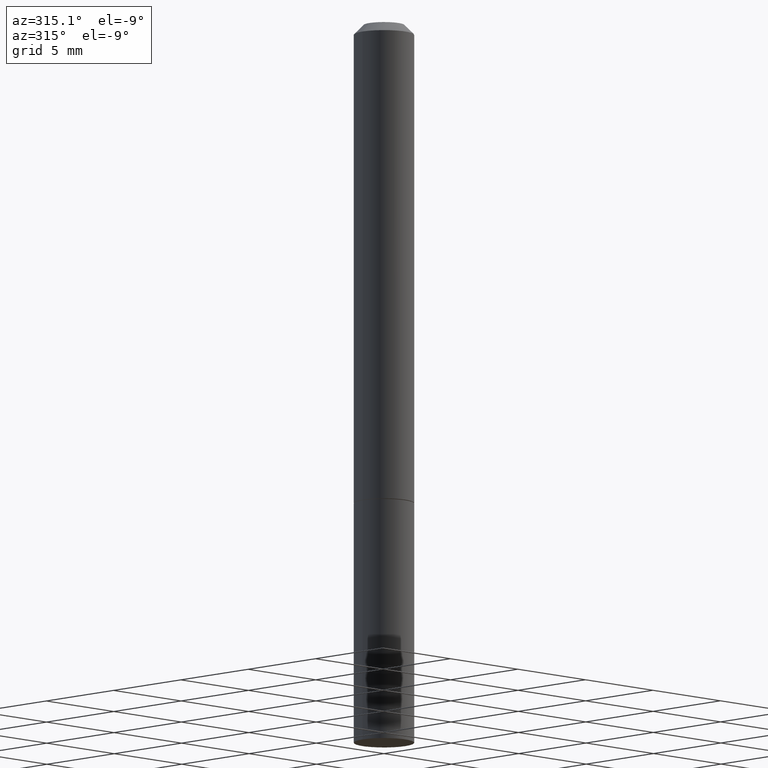
[diagram: clean part render]
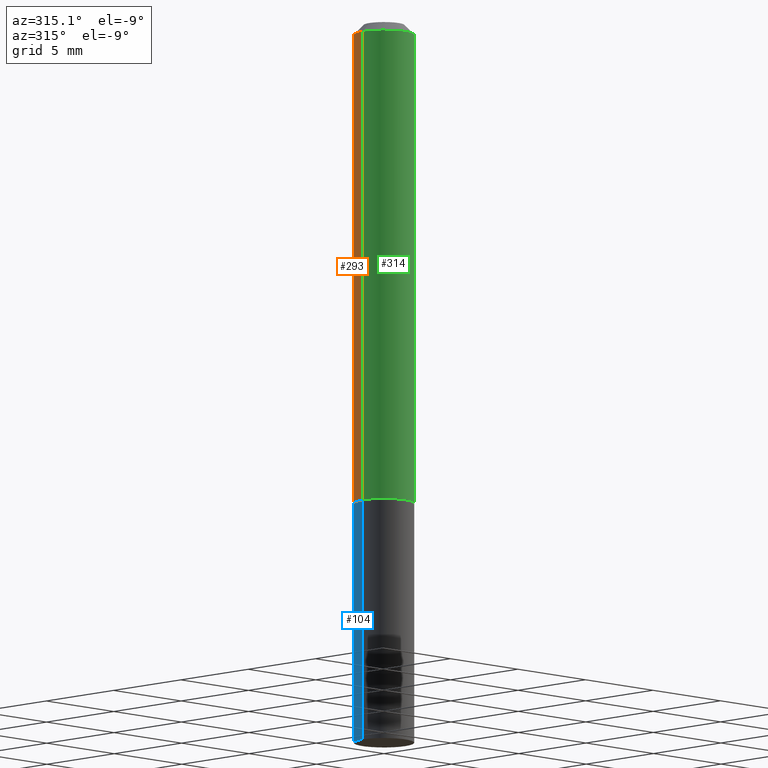
[diagram: same view with three faces highlighted in distinct colors, each labeled with its STEP entity id]
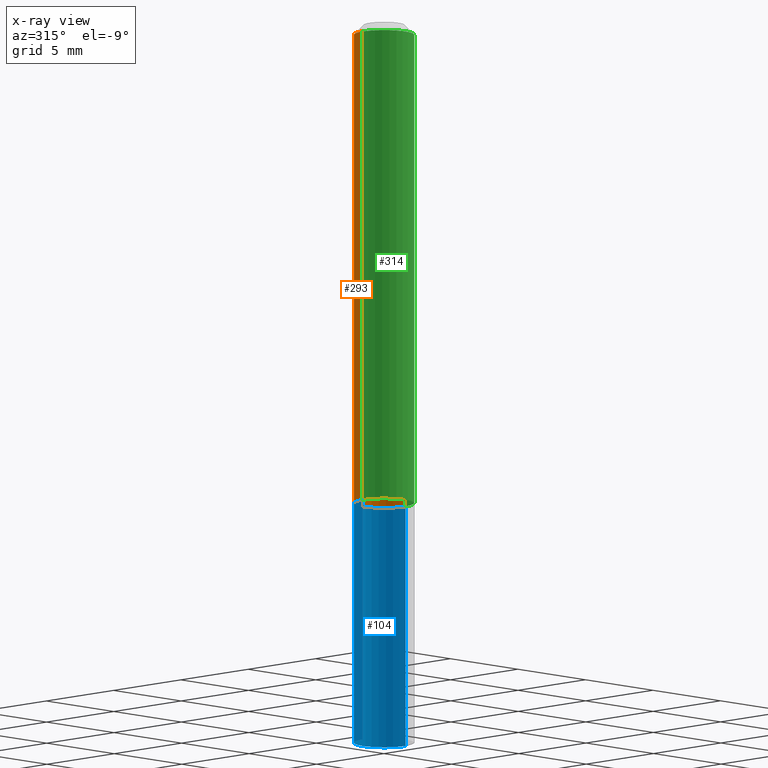
[diagram: x-ray of the same camera — body ghosted, the three highlighted faces saturated]
A machine part, auxiliary view with three faces highlighted in distinct colors.
The next image is the same camera in x-ray (body ghosted, the three faces saturated) — at least one of them is partly hidden behind the body in this view.
Their STEP definitions:

[orange] entity #293 — the highlighted cylindrical surface (edge-blend (fillet) strip) has radius 1.5875 mm, axis along (-0, 0, 1).
#7 = VECTOR ( 'NONE', #194, 39.37007874015748143 ) ;
#22 = CIRCLE ( 'NONE', #379, 0.06249999999999988898 ) ;
#31 = EDGE_CURVE ( 'NONE', #253, #79, #291, .T. ) ;
#40 = CARTESIAN_POINT ( 'NONE',  ( 0.06249999999999995143, -4.364351673553913243E-16, 3.047610484872457418E-30 ) ) ;
#44 = CARTESIAN_POINT ( 'NONE',  ( 0.06250000000000000000, -3.924425024859694639E-15, -0.9990000000000002212 ) ) ;
#50 = ORIENTED_EDGE ( 'NONE', *, *, #31, .T. ) ;
#59 = FACE_OUTER_BOUND ( 'NONE', #275, .T. ) ;
#61 = CARTESIAN_POINT ( 'NONE',  ( 2.443023337378951835E-29, -3.487989857504302970E-15, -0.9990000000000002212 ) ) ;
#79 = VERTEX_POINT ( 'NONE', #164 ) ;
#149 = CARTESIAN_POINT ( 'NONE',  ( 0.000000000000000000, 0.000000000000000000, 0.000000000000000000 ) ) ;
#158 = ORIENTED_EDGE ( 'NONE', *, *, #373, .T. ) ;
#164 = CARTESIAN_POINT ( 'NONE',  ( -0.06249999999999988898, 3.666055405785279275E-16, -0.02000000000000001429 ) ) ;
#176 = DIRECTION ( 'NONE',  ( -2.445468806185136597E-29, 3.491481338843145583E-15, 1.000000000000000000 ) ) ;
#183 = ORIENTED_EDGE ( 'NONE', *, *, #339, .F. ) ;
#188 = LINE ( 'NONE', #40, #7 ) ;
#194 = DIRECTION ( 'NONE',  ( -2.445468806185136877E-29, 3.491481338843145188E-15, 1.000000000000000000 ) ) ;
#202 = EDGE_CURVE ( 'NONE', #206, #338, #188, .T. ) ;
#206 = VERTEX_POINT ( 'NONE', #44 ) ;
#210 = DIRECTION ( 'NONE',  ( -2.445468806185136597E-29, 3.491481338843145583E-15, 1.000000000000000000 ) ) ;
#213 = CIRCLE ( 'NONE', #386, 0.06250000000000000000 ) ;
#229 = CARTESIAN_POINT ( 'NONE',  ( -0.06249999999999995143, 4.440892098500622710E-16, -3.074334431409313661E-30 ) ) ;
#243 = CARTESIAN_POINT ( 'NONE',  ( 0.06249999999999988898, -4.986107516375829362E-16, -0.02000000000000001429 ) ) ;
#253 = VERTEX_POINT ( 'NONE', #361 ) ;
#264 = DIRECTION ( 'NONE',  ( 1.000000000000000000, -6.982962677686270655E-15, 0.000000000000000000 ) ) ;
#266 = CYLINDRICAL_SURFACE ( 'NONE', #333, 0.06249999999999995143 ) ;
#275 = EDGE_LOOP ( 'NONE', ( #158, #50, #183, #357 ) ) ;
#290 = DIRECTION ( 'NONE',  ( -2.445468806185136597E-29, 3.491481338843145583E-15, 1.000000000000000000 ) ) ;
#291 = LINE ( 'NONE', #229, #378 ) ;
#293 = ADVANCED_FACE ( 'NONE', ( #59 ), #266, .T. ) ;
#330 = CARTESIAN_POINT ( 'NONE',  ( 4.890937612370275786E-31, -6.982962677686296539E-17, -0.02000000000000001429 ) ) ;
#333 = AXIS2_PLACEMENT_3D ( 'NONE', #149, #210, #359 ) ;
#338 = VERTEX_POINT ( 'NONE', #243 ) ;
#339 = EDGE_CURVE ( 'NONE', #338, #79, #22, .T. ) ;
#346 = DIRECTION ( 'NONE',  ( -2.445468806185136877E-29, 3.491481338843145188E-15, 1.000000000000000000 ) ) ;
#357 = ORIENTED_EDGE ( 'NONE', *, *, #202, .F. ) ;
#359 = DIRECTION ( 'NONE',  ( 1.000000000000000000, -6.982962677686266711E-15, 4.876176775795935793E-29 ) ) ;
#361 = CARTESIAN_POINT ( 'NONE',  ( -0.06250000000000001388, -1.334820532290518743E-15, -0.9990000000000002212 ) ) ;
#373 = EDGE_CURVE ( 'NONE', #206, #253, #213, .T. ) ;
#378 = VECTOR ( 'NONE', #346, 39.37007874015748143 ) ;
#379 = AXIS2_PLACEMENT_3D ( 'NONE', #330, #176, #385 ) ;
#385 = DIRECTION ( 'NONE',  ( 1.000000000000000000, -6.982962677686266711E-15, 0.000000000000000000 ) ) ;
#386 = AXIS2_PLACEMENT_3D ( 'NONE', #61, #290, #264 ) ;

[blue] entity #104 — the highlighted cylindrical surface (edge-blend (fillet) strip) has radius 1.5875 mm, axis along (-0, 0, 1).
#9 = EDGE_CURVE ( 'NONE', #36, #324, #16, .T. ) ;
#13 = CARTESIAN_POINT ( 'NONE',  ( 0.06250000000000000000, -4.364351673553916694E-16, 3.047610484872459871E-30 ) ) ;
#16 = LINE ( 'NONE', #13, #184 ) ;
#17 = CARTESIAN_POINT ( 'NONE',  ( -0.06250000000000000000, -3.920262463703869855E-15, -1.000000000000000222 ) ) ;
#25 = CARTESIAN_POINT ( 'NONE',  ( 3.668203209277704895E-29, -5.237222008264718177E-15, -1.500000000000000222 ) ) ;
#36 = VERTEX_POINT ( 'NONE', #112 ) ;
#46 = LINE ( 'NONE', #111, #212 ) ;
#49 = DIRECTION ( 'NONE',  ( 1.000000000000000000, -6.982962677686266711E-15, 4.876176775795935793E-29 ) ) ;
#53 = DIRECTION ( 'NONE',  ( -2.445468806185136597E-29, 3.491481338843145583E-15, 1.000000000000000000 ) ) ;
#72 = EDGE_CURVE ( 'NONE', #324, #226, #347, .T. ) ;
#75 = AXIS2_PLACEMENT_3D ( 'NONE', #350, #80, #49 ) ;
#80 = DIRECTION ( 'NONE',  ( -2.445468806185136597E-29, 3.491481338843145583E-15, 1.000000000000000000 ) ) ;
#104 = ADVANCED_FACE ( 'NONE', ( #281 ), #316, .T. ) ;
#106 = EDGE_LOOP ( 'NONE', ( #363, #341, #354, #156 ) ) ;
#109 = CARTESIAN_POINT ( 'NONE',  ( 2.445468806185136877E-29, -3.491481338843145977E-15, -1.000000000000000222 ) ) ;
#111 = CARTESIAN_POINT ( 'NONE',  ( -0.06250000000000000000, 4.440892098500626162E-16, -3.074334431409316114E-30 ) ) ;
#112 = CARTESIAN_POINT ( 'NONE',  ( 0.06249999999999989592, -5.666003133125438899E-15, -1.500000000000000222 ) ) ;
#116 = CARTESIAN_POINT ( 'NONE',  ( 0.06250000000000000000, -3.927916506198537646E-15, -1.000000000000000222 ) ) ;
#131 = EDGE_CURVE ( 'NONE', #315, #226, #46, .T. ) ;
#156 = ORIENTED_EDGE ( 'NONE', *, *, #9, .F. ) ;
#178 = AXIS2_PLACEMENT_3D ( 'NONE', #25, #325, #298 ) ;
#184 = VECTOR ( 'NONE', #284, 39.37007874015748143 ) ;
#212 = VECTOR ( 'NONE', #256, 39.37007874015748143 ) ;
#226 = VERTEX_POINT ( 'NONE', #17 ) ;
#231 = DIRECTION ( 'NONE',  ( 1.000000000000000000, -6.982962677686262766E-15, 0.000000000000000000 ) ) ;
#248 = CIRCLE ( 'NONE', #178, 0.06250000000000000000 ) ;
#250 = EDGE_CURVE ( 'NONE', #36, #315, #248, .T. ) ;
#256 = DIRECTION ( 'NONE',  ( -2.445468806185136877E-29, 3.491481338843145188E-15, 1.000000000000000000 ) ) ;
#279 = AXIS2_PLACEMENT_3D ( 'NONE', #109, #53, #231 ) ;
#281 = FACE_OUTER_BOUND ( 'NONE', #106, .T. ) ;
#284 = DIRECTION ( 'NONE',  ( -2.445468806185136877E-29, 3.491481338843145188E-15, 1.000000000000000000 ) ) ;
#298 = DIRECTION ( 'NONE',  ( 1.000000000000000000, -6.982962677686262766E-15, 0.000000000000000000 ) ) ;
#315 = VERTEX_POINT ( 'NONE', #360 ) ;
#316 = CYLINDRICAL_SURFACE ( 'NONE', #75, 0.06250000000000000000 ) ;
#324 = VERTEX_POINT ( 'NONE', #116 ) ;
#325 = DIRECTION ( 'NONE',  ( -2.445468806185136597E-29, 3.491481338843145583E-15, 1.000000000000000000 ) ) ;
#341 = ORIENTED_EDGE ( 'NONE', *, *, #131, .T. ) ;
#347 = CIRCLE ( 'NONE', #279, 0.06250000000000000000 ) ;
#350 = CARTESIAN_POINT ( 'NONE',  ( 0.000000000000000000, 0.000000000000000000, 0.000000000000000000 ) ) ;
#354 = ORIENTED_EDGE ( 'NONE', *, *, #72, .F. ) ;
#360 = CARTESIAN_POINT ( 'NONE',  ( -0.06249999999999989592, -4.800786840909328085E-15, -1.500000000000000222 ) ) ;
#363 = ORIENTED_EDGE ( 'NONE', *, *, #250, .T. ) ;

[green] entity #314 — the highlighted cylindrical surface (edge-blend (fillet) strip) has radius 1.5875 mm, axis along (-0, 0, 1).
#7 = VECTOR ( 'NONE', #194, 39.37007874015748143 ) ;
#10 = EDGE_LOOP ( 'NONE', ( #134, #287, #277, #39 ) ) ;
#31 = EDGE_CURVE ( 'NONE', #253, #79, #291, .T. ) ;
#39 = ORIENTED_EDGE ( 'NONE', *, *, #328, .F. ) ;
#40 = CARTESIAN_POINT ( 'NONE',  ( 0.06249999999999995143, -4.364351673553913243E-16, 3.047610484872457418E-30 ) ) ;
#44 = CARTESIAN_POINT ( 'NONE',  ( 0.06250000000000000000, -3.924425024859694639E-15, -0.9990000000000002212 ) ) ;
#57 = DIRECTION ( 'NONE',  ( -2.445468806185136597E-29, 3.491481338843145583E-15, 1.000000000000000000 ) ) ;
#60 = DIRECTION ( 'NONE',  ( 1.000000000000000000, -6.982962677686266711E-15, 0.000000000000000000 ) ) ;
#79 = VERTEX_POINT ( 'NONE', #164 ) ;
#87 = DIRECTION ( 'NONE',  ( -2.445468806185136597E-29, 3.491481338843145583E-15, 1.000000000000000000 ) ) ;
#119 = DIRECTION ( 'NONE',  ( 1.000000000000000000, -6.982962677686266711E-15, 4.876176775795935793E-29 ) ) ;
#134 = ORIENTED_EDGE ( 'NONE', *, *, #31, .F. ) ;
#147 = CYLINDRICAL_SURFACE ( 'NONE', #217, 0.06249999999999995143 ) ;
#164 = CARTESIAN_POINT ( 'NONE',  ( -0.06249999999999988898, 3.666055405785279275E-16, -0.02000000000000001429 ) ) ;
#173 = DIRECTION ( 'NONE',  ( -2.445468806185136597E-29, 3.491481338843145583E-15, 1.000000000000000000 ) ) ;
#188 = LINE ( 'NONE', #40, #7 ) ;
#194 = DIRECTION ( 'NONE',  ( -2.445468806185136877E-29, 3.491481338843145188E-15, 1.000000000000000000 ) ) ;
#202 = EDGE_CURVE ( 'NONE', #206, #338, #188, .T. ) ;
#206 = VERTEX_POINT ( 'NONE', #44 ) ;
#217 = AXIS2_PLACEMENT_3D ( 'NONE', #242, #57, #119 ) ;
#224 = CIRCLE ( 'NONE', #260, 0.06249999999999988898 ) ;
#229 = CARTESIAN_POINT ( 'NONE',  ( -0.06249999999999995143, 4.440892098500622710E-16, -3.074334431409313661E-30 ) ) ;
#242 = CARTESIAN_POINT ( 'NONE',  ( 0.000000000000000000, 0.000000000000000000, 0.000000000000000000 ) ) ;
#243 = CARTESIAN_POINT ( 'NONE',  ( 0.06249999999999988898, -4.986107516375829362E-16, -0.02000000000000001429 ) ) ;
#253 = VERTEX_POINT ( 'NONE', #361 ) ;
#260 = AXIS2_PLACEMENT_3D ( 'NONE', #384, #173, #60 ) ;
#267 = AXIS2_PLACEMENT_3D ( 'NONE', #272, #87, #268 ) ;
#268 = DIRECTION ( 'NONE',  ( 1.000000000000000000, -6.982962677686270655E-15, 0.000000000000000000 ) ) ;
#269 = FACE_OUTER_BOUND ( 'NONE', #10, .T. ) ;
#272 = CARTESIAN_POINT ( 'NONE',  ( 2.443023337378951835E-29, -3.487989857504302970E-15, -0.9990000000000002212 ) ) ;
#277 = ORIENTED_EDGE ( 'NONE', *, *, #202, .T. ) ;
#287 = ORIENTED_EDGE ( 'NONE', *, *, #322, .T. ) ;
#291 = LINE ( 'NONE', #229, #378 ) ;
#314 = ADVANCED_FACE ( 'NONE', ( #269 ), #147, .T. ) ;
#322 = EDGE_CURVE ( 'NONE', #253, #206, #332, .T. ) ;
#328 = EDGE_CURVE ( 'NONE', #79, #338, #224, .T. ) ;
#332 = CIRCLE ( 'NONE', #267, 0.06250000000000000000 ) ;
#338 = VERTEX_POINT ( 'NONE', #243 ) ;
#346 = DIRECTION ( 'NONE',  ( -2.445468806185136877E-29, 3.491481338843145188E-15, 1.000000000000000000 ) ) ;
#361 = CARTESIAN_POINT ( 'NONE',  ( -0.06250000000000001388, -1.334820532290518743E-15, -0.9990000000000002212 ) ) ;
#378 = VECTOR ( 'NONE', #346, 39.37007874015748143 ) ;
#384 = CARTESIAN_POINT ( 'NONE',  ( 4.890937612370275786E-31, -6.982962677686296539E-17, -0.02000000000000001429 ) ) ;